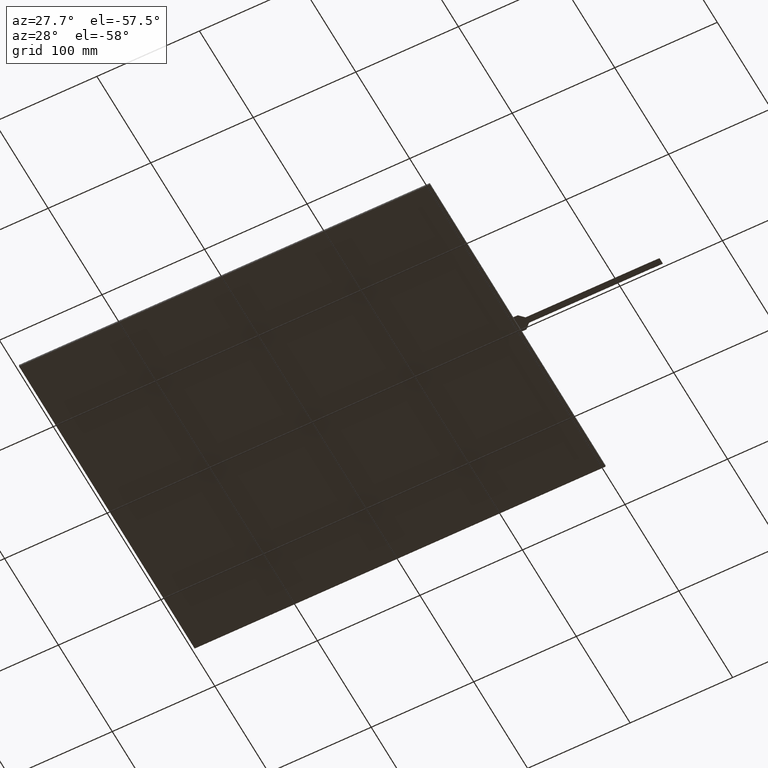
[diagram: clean part render]
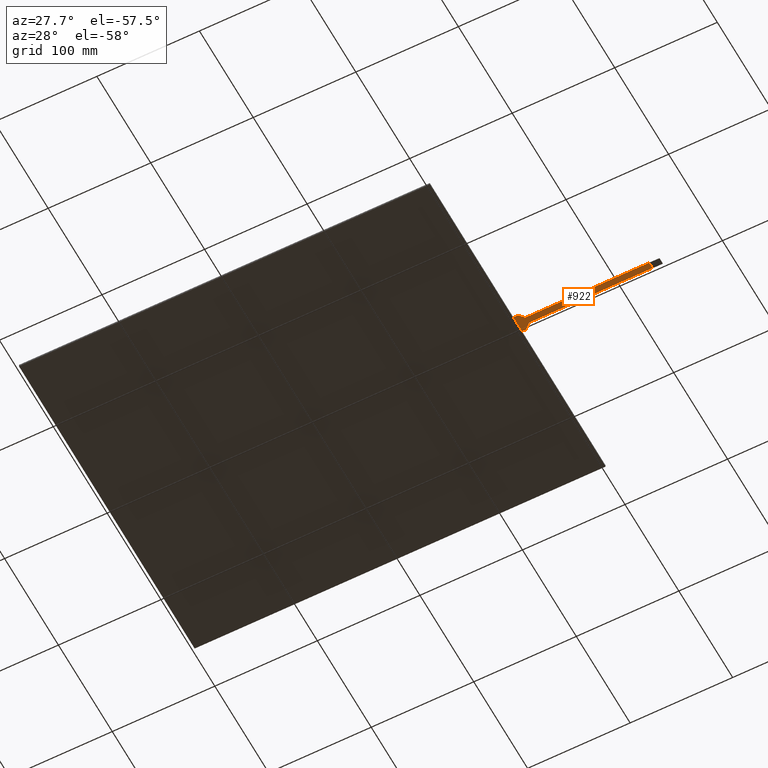
[diagram: same view with one face highlighted and labeled with its STEP entity id]
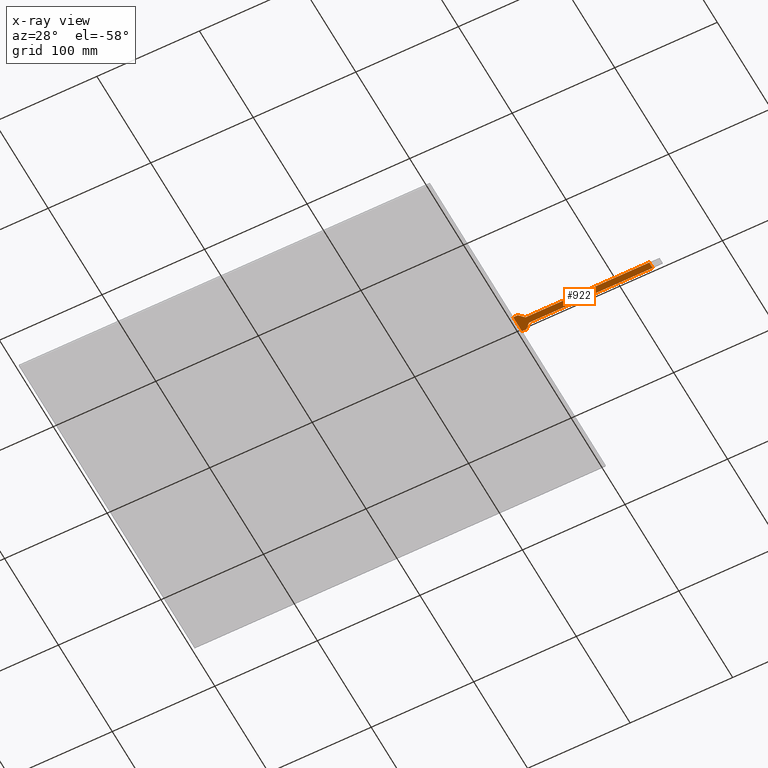
[diagram: x-ray of the same camera — body ghosted, the highlighted face saturated]
A machine part, auxiliary view. The second image highlights one B-rep face of the part: STEP entity #922.
The next image is the same camera in x-ray: the body ghosted, the highlighted face saturated — about 0% of this face is hidden behind the body in this view.
In plain terms, the highlighted planar face has unit normal (0, 0, -1).
Its self-contained STEP definition (entity closure, byte-faithful):
#49=PLANE('',#992);
#95=FACE_OUTER_BOUND('',#143,.T.);
#143=EDGE_LOOP('',(#664,#665,#666,#667,#668,#669,#670,#671,#672));
#195=LINE('',#1288,#318);
#196=LINE('',#1290,#319);
#197=LINE('',#1292,#320);
#198=LINE('',#1294,#321);
#199=LINE('',#1296,#322);
#200=LINE('',#1298,#323);
#201=LINE('',#1300,#324);
#202=LINE('',#1301,#325);
#318=VECTOR('',#1055,10.);
#319=VECTOR('',#1056,10.);
#320=VECTOR('',#1057,10.);
#321=VECTOR('',#1058,10.);
#322=VECTOR('',#1059,10.);
#323=VECTOR('',#1060,10.);
#324=VECTOR('',#1061,10.);
#325=VECTOR('',#1062,10.);
#439=CIRCLE('',#990,1.);
#445=VERTEX_POINT('',#1278);
#446=VERTEX_POINT('',#1279);
#449=VERTEX_POINT('',#1287);
#450=VERTEX_POINT('',#1289);
#451=VERTEX_POINT('',#1291);
#452=VERTEX_POINT('',#1293);
#453=VERTEX_POINT('',#1295);
#454=VERTEX_POINT('',#1297);
#455=VERTEX_POINT('',#1299);
#531=EDGE_CURVE('',#445,#446,#439,.T.);
#535=EDGE_CURVE('',#445,#449,#195,.T.);
#536=EDGE_CURVE('',#449,#450,#196,.T.);
#537=EDGE_CURVE('',#450,#451,#197,.T.);
#538=EDGE_CURVE('',#451,#452,#198,.T.);
#539=EDGE_CURVE('',#452,#453,#199,.T.);
#540=EDGE_CURVE('',#453,#454,#200,.T.);
#541=EDGE_CURVE('',#455,#454,#201,.T.);
#542=EDGE_CURVE('',#455,#446,#202,.T.);
#664=ORIENTED_EDGE('',*,*,#531,.F.);
#665=ORIENTED_EDGE('',*,*,#535,.T.);
#666=ORIENTED_EDGE('',*,*,#536,.T.);
#667=ORIENTED_EDGE('',*,*,#537,.T.);
#668=ORIENTED_EDGE('',*,*,#538,.T.);
#669=ORIENTED_EDGE('',*,*,#539,.T.);
#670=ORIENTED_EDGE('',*,*,#540,.T.);
#671=ORIENTED_EDGE('',*,*,#541,.F.);
#672=ORIENTED_EDGE('',*,*,#542,.T.);
#922=ADVANCED_FACE('',(#95),#49,.T.);
#990=AXIS2_PLACEMENT_3D('',#1280,#1047,#1048);
#992=AXIS2_PLACEMENT_3D('',#1286,#1053,#1054);
#1047=DIRECTION('center_axis',(0.,0.,1.));
#1048=DIRECTION('ref_axis',(0.382683432365074,0.923879532511293,0.));
#1053=DIRECTION('center_axis',(0.,0.,-1.));
#1054=DIRECTION('ref_axis',(-1.,0.,0.));
#1055=DIRECTION('',(0.707106781186548,-0.707106781186547,0.));
#1056=DIRECTION('',(1.,0.,0.));
#1057=DIRECTION('',(0.,-1.,0.));
#1058=DIRECTION('',(-1.,0.,0.));
#1059=DIRECTION('',(-0.707106781186548,-0.707106781186547,0.));
#1060=DIRECTION('',(-1.,0.,0.));
#1061=DIRECTION('',(1.08845394571094E-16,-1.,0.));
#1062=DIRECTION('',(1.,-2.52898183285913E-16,0.));
#1278=CARTESIAN_POINT('',(204.982893218813,7.84210678118653,-0.3));
#1279=CARTESIAN_POINT('',(204.275786437627,8.13499999999999,-0.3));
#1280=CARTESIAN_POINT('Origin',(204.275786437627,7.13499999999999,-0.3));
#1286=CARTESIAN_POINT('Origin',(270.3,-7.21644966006352E-15,-0.3));
#1287=CARTESIAN_POINT('',(209.7,3.12499999999999,-0.3));
#1288=CARTESIAN_POINT('',(209.7,3.12499999999999,-0.3));
#1289=CARTESIAN_POINT('',(330.3,3.12499999999999,-0.3));
#1290=CARTESIAN_POINT('',(340.3,3.12499999999999,-0.3));
#1291=CARTESIAN_POINT('',(330.3,-3.12500000000001,-0.3));
#1292=CARTESIAN_POINT('',(330.3,-1.56250000000001,-0.3));
#1293=CARTESIAN_POINT('',(209.7,-3.12500000000001,-0.3));
#1294=CARTESIAN_POINT('',(209.7,-3.12500000000001,-0.3));
#1295=CARTESIAN_POINT('',(204.69,-8.13500000000001,-0.3));
#1296=CARTESIAN_POINT('',(204.69,-8.13500000000001,-0.3));
#1297=CARTESIAN_POINT('',(200.3,-8.13500000000001,-0.3));
#1298=CARTESIAN_POINT('',(200.3,-8.13500000000001,-0.3));
#1299=CARTESIAN_POINT('',(200.3,8.13499999999999,-0.3));
#1300=CARTESIAN_POINT('',(200.3,81.6,-0.3));
#1301=CARTESIAN_POINT('',(204.69,8.13499999999999,-0.3));